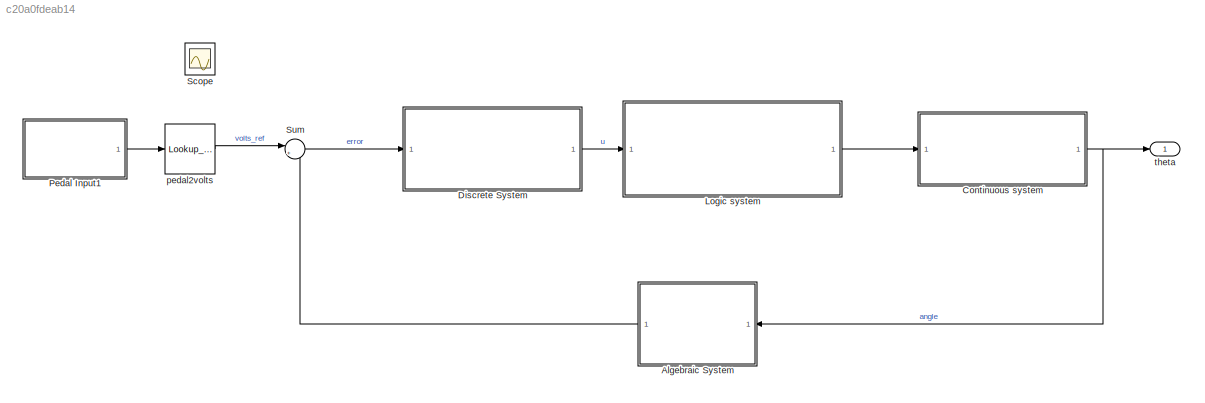
MODEL slx_c20a0fdeab14
KIND model
CONFIG AbsTol = auto
CONFIG EnableMultiTasking = on
CONFIG FixedStep = auto
CONFIG MaxStep = auto
CONFIG MinStep = auto
CONFIG PreLoadFcn = sensorChapter2;\nlogicChapter3;\ncontrollerChapter4;\nthrottleChapter5;
CONFIG RelTol = 1e-3
CONFIG SampleTimeConstraint = Unconstrained
CONFIG Solver = ode45
CONFIG SolverName = ode45
CONFIG StartTime = 0.0
CONFIG StopTime = 10.0
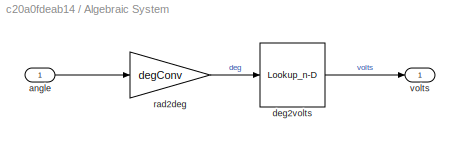
BLOCK [SubSystem] Algebraic System
  Ports = [1, 1]
  RequestExecContextInheritance = off
  Variant = off
BLOCK [Inport] Algebraic System/angle
  IconDisplay = Port number
BLOCK [Lookup_n-D] Algebraic System/deg2volts
  BreakpointsForDimension1 = [0 90]
  NumberOfTableDimensions = 1
  Ports = [1, 1]
  RndMeth = Simplest
  Table = [0.5 4.5]
BLOCK [Gain] Algebraic System/rad2deg
  Gain = degConv
BLOCK [Outport] Algebraic System/volts
  IconDisplay = Port number
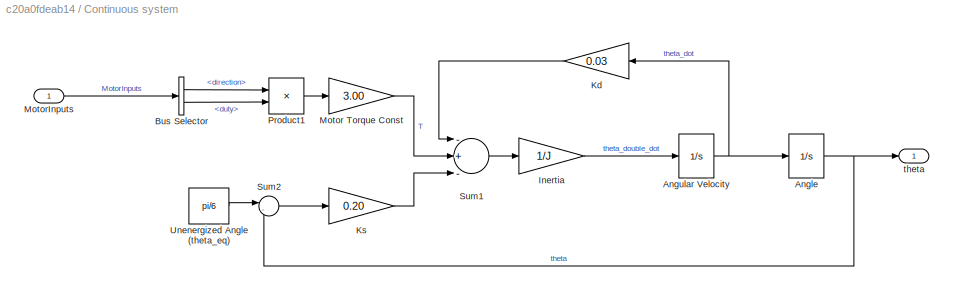
BLOCK [SubSystem] Continuous system
  Ports = [1, 1]
  RequestExecContextInheritance = off
  Variant = off
BLOCK [Integrator] Continuous system/Angle
  AttributesFormatString = Initial condition: %<InitialCondition>\n%<LowerSaturationLimit> <= theta <= %<UpperSaturationLimit>
  InitialCondition = pi/6
  LimitOutput = on
  LowerSaturationLimit = 0
  Ports = [1, 1]
  UpperSaturationLimit = pi/2
BLOCK [Integrator] Continuous system/Angular Velocity
  AttributesFormatString = Initial condition: %<InitialCondition>
  Ports = [1, 1]
BLOCK [BusSelector] Continuous system/Bus Selector
  OutputSignals = direction,duty
  Ports = [1, 2]
BLOCK [Gain] Continuous system/Inertia
  Gain = 1/J
BLOCK [Gain] Continuous system/Kd
  Gain = 0.03
BLOCK [Gain] Continuous system/Ks
  Gain = 0.20
BLOCK [Gain] Continuous system/Motor Torque Const
  Gain = 3.00
BLOCK [Inport] Continuous system/MotorInputs
  IconDisplay = Port number
BLOCK [Product] Continuous system/Product1
  InputSameDT = off
  Ports = [2, 1]
  RndMeth = Floor
BLOCK [Sum] Continuous system/Sum1
  InputSameDT = off
  Inputs = -+-
  OutDataTypeStr = Inherit: Inherit via internal rule
  Ports = [3, 1]
BLOCK [Sum] Continuous system/Sum2
  IconShape = round
  InputSameDT = off
  Inputs = |-+
  OutDataTypeStr = Inherit: Inherit via internal rule
  Ports = [2, 1]
BLOCK [Constant] Continuous system/Unenergized Angle (theta_eq)
  Value = pi/6
BLOCK [Outport] Continuous system/theta
  IconDisplay = Port number
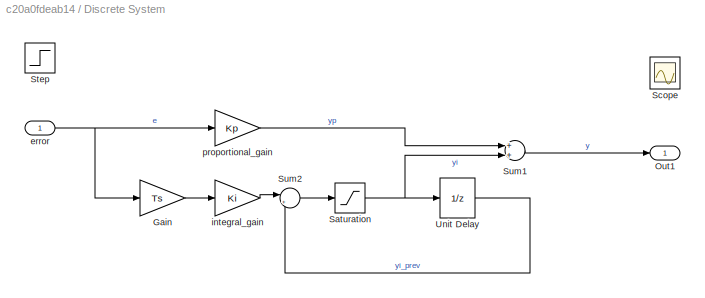
BLOCK [SubSystem] Discrete System
  Ports = [1, 1]
  RequestExecContextInheritance = off
  Variant = off
BLOCK [Gain] Discrete System/Gain
  Gain = Ts
BLOCK [Outport] Discrete System/Out1
  IconDisplay = Port number
BLOCK [Saturate] Discrete System/Saturation
  AttributesFormatString = Max: %<UpperLimit>\nMin: %<LowerLimit>
  InputPortMap = u0
  LowerLimit = -1
  Ports = [1, 1]
  UpperLimit = 1
BLOCK [Scope] Discrete System/Scope
  NumInputPorts = 1
  Ports = [1]
  ScopeSpecificationString = C++SS(StrPVP('Location','[188, 390, 512, 629]'),StrPVP('Open','off'),MxPVP('AxesTitles',24,'struct(''axes1'',''%<SignalLabel>'')'),StrPVP('DataFormat','StructureWithTime'),StrPVP('BlockParamSampleTime','0'),StrPVP('LimitDataPoints','on'),StrPVP('DataLoggingDecimation','1'),StrPVP('BlockParamSampleInput','off'),StrPVP('Decimation','1'),StrPVP('SaveName','ScopeData'))
BLOCK [Step] Discrete System/Step
  AttributesFormatString = Sample time = %<SampleTime>
  SampleTime = Ts
BLOCK [Sum] Discrete System/Sum1
  Ports = [2, 1]
BLOCK [Sum] Discrete System/Sum2
  IconShape = round
  Inputs = |++
  Ports = [2, 1]
BLOCK [UnitDelay] Discrete System/Unit Delay
  AttributesFormatString = yi0 = %<X0>\nSample time = %<SampleTime>
  SampleTime = Ts
BLOCK [Inport] Discrete System/error
  IconDisplay = Port number
BLOCK [Gain] Discrete System/integral_gain
  Gain = Ki
BLOCK [Gain] Discrete System/proportional_gain
  Gain = Kp
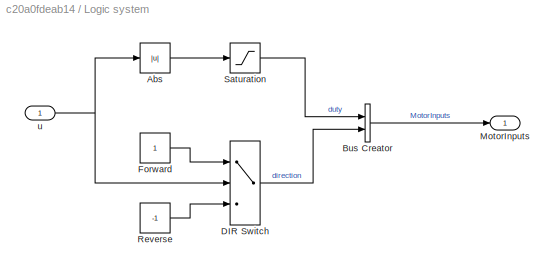
BLOCK [SubSystem] Logic system
  Ports = [1, 1]
  RequestExecContextInheritance = off
  Variant = off
BLOCK [Abs] Logic system/Abs
  SaturateOnIntegerOverflow = off
BLOCK [BusCreator] Logic system/Bus Creator
  DisplayOption = bar
  InheritFromInputs = on
  Inputs = 2
  Ports = [2, 1]
BLOCK [Switch] Logic system/DIR Switch
  AttributesFormatString = Criteria: %<Criteria>\nThreshold: %<Threshold>
  InputSameDT = off
  SaturateOnIntegerOverflow = off
BLOCK [Constant] Logic system/Forward
  OutDataTypeStr = double
BLOCK [Outport] Logic system/MotorInputs
  IconDisplay = Port number
BLOCK [Constant] Logic system/Reverse
  OutDataTypeStr = double
  Value = -1
BLOCK [Saturate] Logic system/Saturation
  AttributesFormatString = %<LowerLimit> < duty < %<UpperLimit>
  InputPortMap = u0
  LowerLimit = 0
  Ports = [1, 1]
  UpperLimit = 1
BLOCK [Inport] Logic system/u
  IconDisplay = Port number
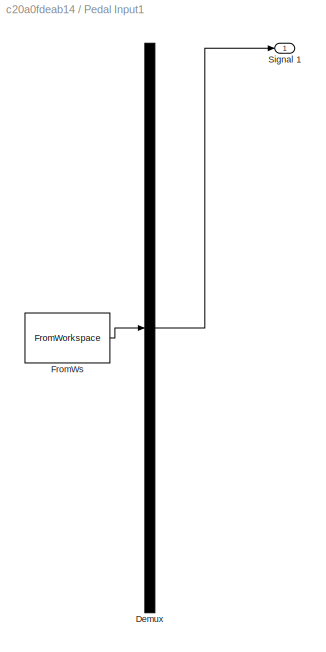
BLOCK [SubSystem] Pedal Input1
  AttributesFormatString = 0 - Pedal not pressed\n1 - Pedal fully pressed
  ClipboardFcn = sigbuilder_block('clipboard');
  CloseFcn = sigbuilder_block('close');
  ContinueFcn = sigbuilder_block('continue')
  CopyFcn = sigbuilder_block('copy');
  DeleteFcn = sigbuilder_block('delete');
  LoadFcn = sigbuilder_block('load');
  MaskHideContents = on
  ModelCloseFcn = sigbuilder_block('modelClose');
  NameChangeFcn = sigbuilder_block('namechange');
  OpenFcn = sigbuilder_block('open',[437.6 199.2 550.4 400 ]);
  PauseFcn = sigbuilder_block('pause')
  Ports = [0, 1]
  PreSaveFcn = sigbuilder_block('preSave');
  RequestExecContextInheritance = off
  StartFcn = sigbuilder_block('start');
  StopFcn = sigbuilder_block('stop');
  Tag = STV Subsys
  Variant = off
BLOCK [Demux] Pedal Input1/Demux
  Outputs = 1
  Ports = [1, 1]
  Tag = STV Demux
BLOCK [FromWorkspace] Pedal Input1/FromWs
  SampleTime = 0
  Tag = STV FromWs
  VariableName = tuvar
  ZeroCross = on
BLOCK [Outport] Pedal Input1/Signal 1
  IconDisplay = Port number
  Tag = STV Outport
BLOCK [Scope] Scope
  IOType = viewer
  NumInputPorts = 1
  Ports = []
  ScopeSpecificationString = Simulink.scopes.TimeScopeBlockCfg('CurrentConfiguration', extmgr.ConfigurationSet(extmgr.Configuration('Core','General UI',true),extmgr.Configuration('Core','Source UI',true),extmgr.Configuration('Sources','WiredSimulink',true,'DataLoggingVariableName','ScopeData1'),extmgr.Configuration('Visuals','Time Domain',true,'SerializedDisplays',{struct('MinYLimReal','-0.4625','MaxYLimReal','4.1625','YLabel...<+1422ch>
BLOCK [Sum] Sum
  IconShape = round
  InputSameDT = off
  Inputs = |+-
  OutDataTypeStr = Inherit: Inherit via internal rule
  Ports = [2, 1]
  SaturateOnIntegerOverflow = off
BLOCK [Lookup_n-D] pedal2volts
  BreakpointsForDimension1 = [0 1]
  NumberOfTableDimensions = 1
  Ports = [1, 1]
  RndMeth = Simplest
  Table = [0.5 4.5]
BLOCK [Outport] theta
  IconDisplay = Port number
LINE Algebraic System/angle:1 -> Algebraic System/rad2deg:1
LINE Algebraic System/deg2volts:1 -> Algebraic System/volts:1
LINE Algebraic System/rad2deg:1 -> Algebraic System/deg2volts:1
LINE Algebraic System:1 -> Sum:2
NET Continuous system/Angle:1 -> Continuous system/Sum2:2, Continuous system/theta:1
NET Continuous system/Angular Velocity:1 -> Continuous system/Angle:1, Continuous system/Kd:1
LINE Continuous system/Bus Selector:1 -> Continuous system/Product1:1
LINE Continuous system/Bus Selector:2 -> Continuous system/Product1:2
LINE Continuous system/Inertia:1 -> Continuous system/Angular Velocity:1
LINE Continuous system/Kd:1 -> Continuous system/Sum1:1
LINE Continuous system/Ks:1 -> Continuous system/Sum1:3
LINE Continuous system/Motor Torque Const:1 -> Continuous system/Sum1:2
LINE Continuous system/MotorInputs:1 -> Continuous system/Bus Selector:1
LINE Continuous system/Product1:1 -> Continuous system/Motor Torque Const:1
LINE Continuous system/Sum1:1 -> Continuous system/Inertia:1
LINE Continuous system/Sum2:1 -> Continuous system/Ks:1
LINE Continuous system/Unenergized Angle (theta_eq):1 -> Continuous system/Sum2:1
NET Continuous system:1 -> Algebraic System:1, theta:1
LINE Discrete System/Gain:1 -> Discrete System/integral_gain:1
NET Discrete System/Saturation:1 -> Discrete System/Sum1:2, Discrete System/Unit Delay:1
LINE Discrete System/Sum1:1 -> Discrete System/Out1:1
LINE Discrete System/Sum2:1 -> Discrete System/Saturation:1
LINE Discrete System/Unit Delay:1 -> Discrete System/Sum2:2
NET Discrete System/error:1 -> Discrete System/Gain:1, Discrete System/proportional_gain:1
LINE Discrete System/integral_gain:1 -> Discrete System/Sum2:1
LINE Discrete System/proportional_gain:1 -> Discrete System/Sum1:1
LINE Discrete System:1 -> Logic system:1
LINE Logic system/Abs:1 -> Logic system/Saturation:1
LINE Logic system/Bus Creator:1 -> Logic system/MotorInputs:1
LINE Logic system/DIR Switch:1 -> Logic system/Bus Creator:2
LINE Logic system/Forward:1 -> Logic system/DIR Switch:1
LINE Logic system/Reverse:1 -> Logic system/DIR Switch:3
LINE Logic system/Saturation:1 -> Logic system/Bus Creator:1
NET Logic system/u:1 -> Logic system/Abs:1, Logic system/DIR Switch:2
LINE Logic system:1 -> Continuous system:1
LINE Pedal Input1/Demux:1 -> Pedal Input1/Signal 1:1
LINE Pedal Input1/FromWs:1 -> Pedal Input1/Demux:1
LINE Pedal Input1:1 -> pedal2volts:1
LINE Sum:1 -> Discrete System:1
LINE pedal2volts:1 -> Sum:1
note: NET lines group one-source signal fan-out (src -> all destinations, sorted); 1:1 wires keep LINE
